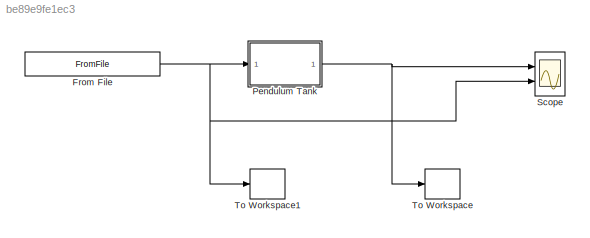
MODEL slx_be89e9fe1ec3
KIND model
CONFIG AbsTol = auto
CONFIG EnableMultiTasking = off
CONFIG FixedStep = 0.01
CONFIG MaxStep = auto
CONFIG MinStep = auto
CONFIG RelTol = 1e-3
CONFIG SampleTimeConstraint = Unconstrained
CONFIG Solver = ode5
CONFIG SolverName = ode5
CONFIG StartTime = 0.0
CONFIG StopTime = 200
BLOCK [FromFile] From File
  FileName = Pendulum_Input.mat
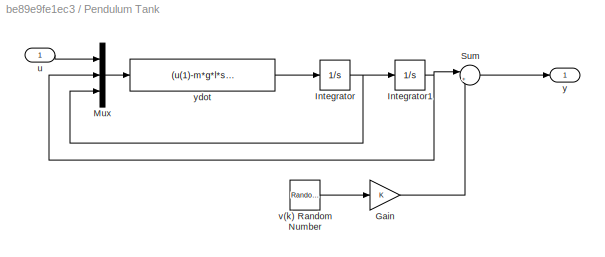
BLOCK [SubSystem] Pendulum Tank
  Ports = [1, 1]
  RequestExecContextInheritance = off
BLOCK [Gain] Pendulum Tank/Gain
  OutDataTypeStr = Inherit: Inherit via internal rule
  ParamDataTypeStr = Inherit: Inherit via internal rule
  SaturateOnIntegerOverflow = off
BLOCK [Integrator] Pendulum Tank/Integrator
  LowerSaturationLimit = 0
  Ports = [1, 1]
  UpperSaturationLimit = 100
BLOCK [Integrator] Pendulum Tank/Integrator1
  LowerSaturationLimit = 0
  Ports = [1, 1]
  UpperSaturationLimit = 100
BLOCK [Mux] Pendulum Tank/Mux
  DisplayOption = bar
  Inputs = 3
  Ports = [3, 1]
BLOCK [Sum] Pendulum Tank/Sum
  IconShape = round
  InputSameDT = off
  Inputs = |++
  OutDataTypeStr = Inherit: Inherit via internal rule
  Ports = [2, 1]
  SaturateOnIntegerOverflow = off
BLOCK [Inport] Pendulum Tank/u
  IconDisplay = Port number
BLOCK [RandomNumber] Pendulum Tank/v(k) Random Number
  Variance = 0.001
BLOCK [Outport] Pendulum Tank/y
  IconDisplay = Port number
BLOCK [Fcn] Pendulum Tank/ydot
  Expr = (u(1)-m*g*l*sin(u(2))-b*u(3))/(m*l^2)
BLOCK [Scope] Scope
  Floating = off
  NumInputPorts = 2
  Ports = [2]
  ScopeSpecificationString = Simulink.scopes.TimeScopeBlockCfg('CurrentConfiguration', extmgr.ConfigurationSet(extmgr.Configuration('Core','General UI',true,'FigureColor',[1 1 1]),extmgr.Configuration('Core','Source UI',true),extmgr.Configuration('Sources','WiredSimulink',true),extmgr.Configuration('Visuals','Time Domain',true,'SerializedDisplays',{struct('MinYLimReal','-1.3722','MaxYLimReal','1.51134','YLabelReal','','MinYLi...<+2305ch>
BLOCK [ToWorkspace] To Workspace
  FixptAsFi = on
  MaxDataPoints = inf
  Ports = [1]
  SampleTime = -1
  VariableName = y
BLOCK [ToWorkspace] To Workspace1
  FixptAsFi = on
  MaxDataPoints = inf
  Ports = [1]
  SampleTime = -1
  VariableName = u
NET From File:1 -> Pendulum Tank:1, Scope:2, To Workspace1:1
LINE Pendulum Tank/Gain:1 -> Pendulum Tank/Sum:2
NET Pendulum Tank/Integrator1:1 -> Pendulum Tank/Mux:2, Pendulum Tank/Sum:1
NET Pendulum Tank/Integrator:1 -> Pendulum Tank/Integrator1:1, Pendulum Tank/Mux:3
LINE Pendulum Tank/Mux:1 -> Pendulum Tank/ydot:1
LINE Pendulum Tank/Sum:1 -> Pendulum Tank/y:1
LINE Pendulum Tank/u:1 -> Pendulum Tank/Mux:1
LINE Pendulum Tank/v(k) Random Number:1 -> Pendulum Tank/Gain:1
LINE Pendulum Tank/ydot:1 -> Pendulum Tank/Integrator:1
NET Pendulum Tank:1 -> Scope:1, To Workspace:1
note: NET lines group one-source signal fan-out (src -> all destinations, sorted); 1:1 wires keep LINE
